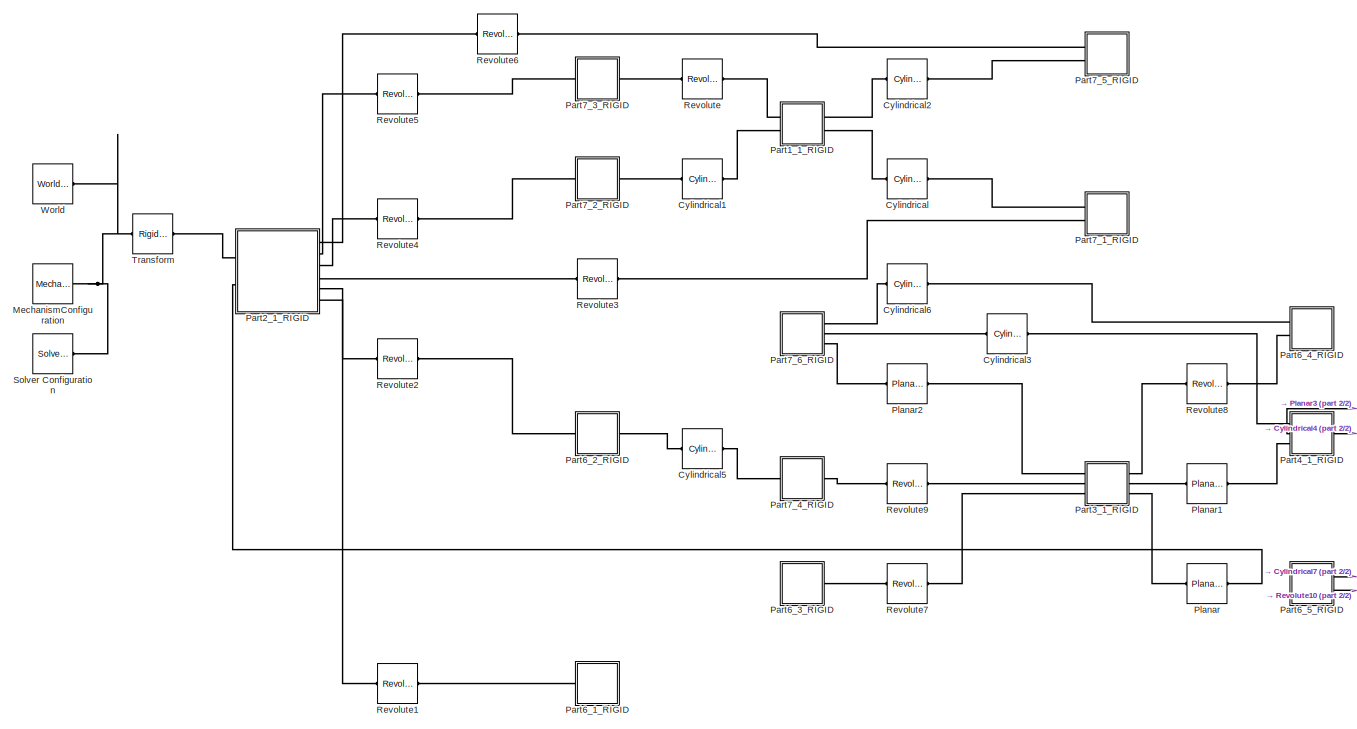
[diagram: root canvas - part 1/2, center side, full height]
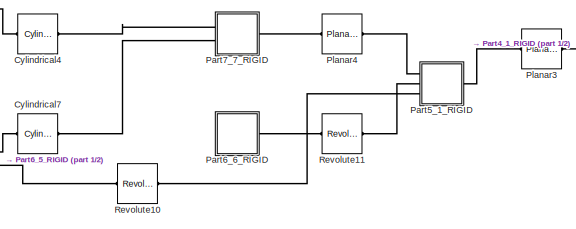
[diagram: root canvas - part 2/2, bottom right region]
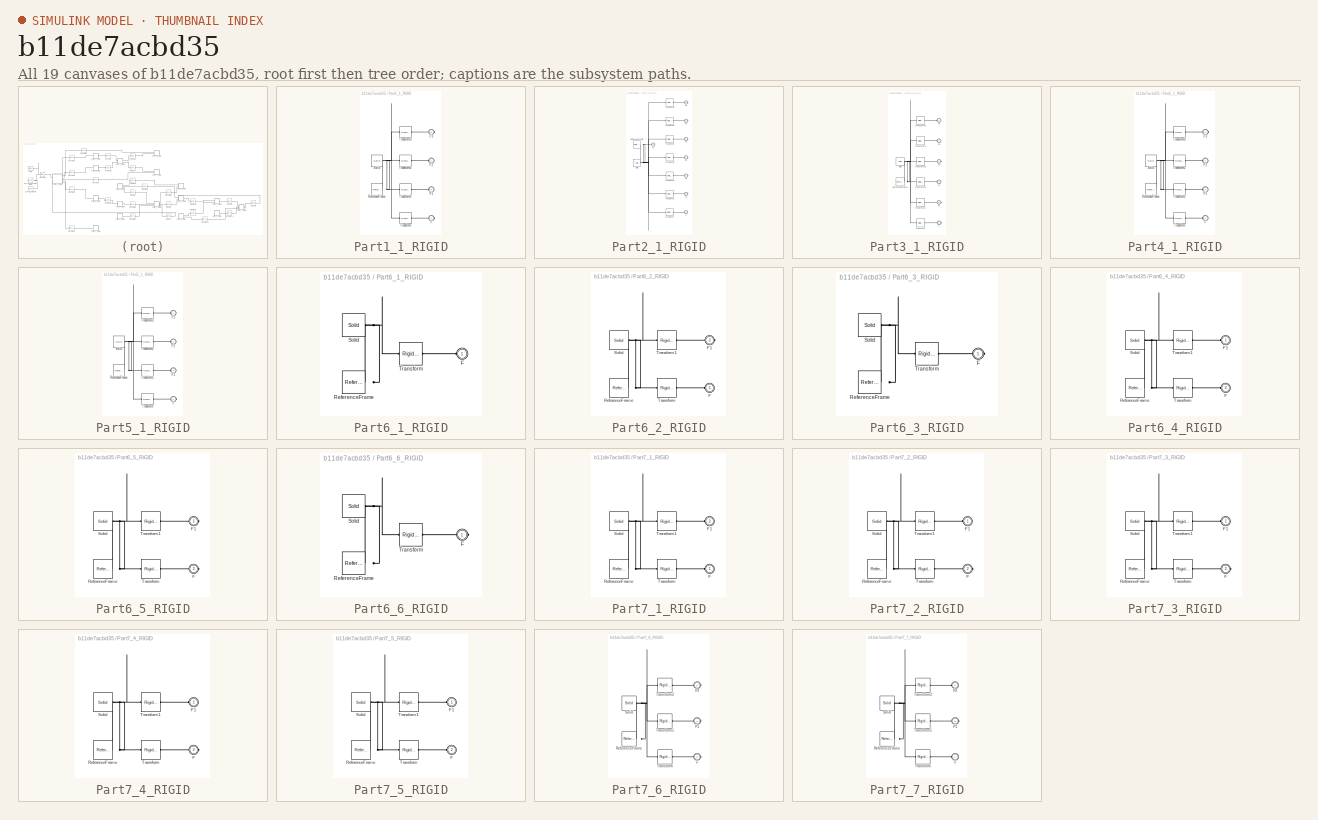
[diagram: thumbnail index - all 19 canvases of the model, root first then tree order]
MODEL slx_b11de7acbd35
KIND model
CONFIG AbsTol = auto
CONFIG EnableMultiTasking = off
CONFIG FixedStep = auto
CONFIG MaxStep = auto
CONFIG MinStep = auto
CONFIG RelTol = 1e-3
CONFIG SampleTimeConstraint = Unconstrained
CONFIG Solver = VariableStepAuto
CONFIG SolverName = VariableStepAuto
CONFIG StartTime = 0.0
CONFIG StopTime = inf
WORKSPACE source: external: MATLAB File  (data not in archive)
BLOCK [Reference] Cylindrical  REF=sm_lib/Joints/Cylindrical
Joint
  Ports = [0, 0, 0, 0, 0, 1, 1]
  SourceBlock = sm_lib/Joints/Cylindrical\nJoint
  SourceProductBaseCode = MS
  SourceType = Cylindrical\nJoint
BLOCK [Reference] Cylindrical1  REF=sm_lib/Joints/Cylindrical
Joint
  Ports = [0, 0, 0, 0, 0, 1, 1]
  SourceBlock = sm_lib/Joints/Cylindrical\nJoint
  SourceProductBaseCode = MS
  SourceType = Cylindrical\nJoint
BLOCK [Reference] Cylindrical2  REF=sm_lib/Joints/Cylindrical
Joint
  Ports = [0, 0, 0, 0, 0, 1, 1]
  SourceBlock = sm_lib/Joints/Cylindrical\nJoint
  SourceProductBaseCode = MS
  SourceType = Cylindrical\nJoint
BLOCK [Reference] Cylindrical3  REF=sm_lib/Joints/Cylindrical
Joint
  Ports = [0, 0, 0, 0, 0, 1, 1]
  SourceBlock = sm_lib/Joints/Cylindrical\nJoint
  SourceProductBaseCode = MS
  SourceType = Cylindrical\nJoint
BLOCK [Reference] Cylindrical4  REF=sm_lib/Joints/Cylindrical
Joint
  Ports = [0, 0, 0, 0, 0, 1, 1]
  SourceBlock = sm_lib/Joints/Cylindrical\nJoint
  SourceProductBaseCode = MS
  SourceType = Cylindrical\nJoint
BLOCK [Reference] Cylindrical5  REF=sm_lib/Joints/Cylindrical
Joint
  Ports = [0, 0, 0, 0, 0, 1, 1]
  SourceBlock = sm_lib/Joints/Cylindrical\nJoint
  SourceProductBaseCode = MS
  SourceType = Cylindrical\nJoint
BLOCK [Reference] Cylindrical6  REF=sm_lib/Joints/Cylindrical
Joint
  Ports = [0, 0, 0, 0, 0, 1, 1]
  SourceBlock = sm_lib/Joints/Cylindrical\nJoint
  SourceProductBaseCode = MS
  SourceType = Cylindrical\nJoint
BLOCK [Reference] Cylindrical7  REF=sm_lib/Joints/Cylindrical
Joint
  Ports = [0, 0, 0, 0, 0, 1, 1]
  SourceBlock = sm_lib/Joints/Cylindrical\nJoint
  SourceProductBaseCode = MS
  SourceType = Cylindrical\nJoint
BLOCK [Reference] MechanismConfiguration  REF=sm_lib/Utilities/Mechanism
Configuration
  Ports = [0, 0, 0, 0, 0, 0, 1]
  SourceBlock = sm_lib/Utilities/Mechanism\nConfiguration
  SourceProductBaseCode = MS
  SourceType = Mechanism\nConfiguration
BLOCK [SubSystem] Part1_1_RIGID
  Ports = [0, 0, 0, 0, 0, 2, 2]
  RequestExecContextInheritance = off
BLOCK [PMIOPort] Part1_1_RIGID/F
  Port = 4
  Side = Right
BLOCK [PMIOPort] Part1_1_RIGID/F1
  Port = 2
  Side = Left
BLOCK [PMIOPort] Part1_1_RIGID/F2
  Side = Left
BLOCK [PMIOPort] Part1_1_RIGID/F3
  Port = 3
  Side = Right
BLOCK [Reference] Part1_1_RIGID/ReferenceFrame  REF=sm_lib/Frames and
Transforms/Reference
Frame
  Ports = [0, 0, 0, 0, 0, 0, 1]
  SourceBlock = sm_lib/Frames and\nTransforms/Reference\nFrame
  SourceProductBaseCode = MS
  SourceType = Reference\nFrame
BLOCK [Reference] Part1_1_RIGID/Solid  REF=sm_lib/Body Elements/Solid
  Ports = [0, 0, 0, 0, 0, 0, 1]
  SourceBlock = sm_lib/Body Elements/Solid
  SourceProductBaseCode = MS
  SourceType = File Solid
BLOCK [Reference] Part1_1_RIGID/Transform  REF=sm_lib/Frames and
Transforms/Rigid
Transform
  Ports = [0, 0, 0, 0, 0, 1, 1]
  SourceBlock = sm_lib/Frames and\nTransforms/Rigid\nTransform
  SourceProductBaseCode = MS
  SourceType = Rigid\nTransform
BLOCK [Reference] Part1_1_RIGID/Transform1  REF=sm_lib/Frames and
Transforms/Rigid
Transform
  Ports = [0, 0, 0, 0, 0, 1, 1]
  SourceBlock = sm_lib/Frames and\nTransforms/Rigid\nTransform
  SourceProductBaseCode = MS
  SourceType = Rigid\nTransform
BLOCK [Reference] Part1_1_RIGID/Transform2  REF=sm_lib/Frames and
Transforms/Rigid
Transform
  Ports = [0, 0, 0, 0, 0, 1, 1]
  SourceBlock = sm_lib/Frames and\nTransforms/Rigid\nTransform
  SourceProductBaseCode = MS
  SourceType = Rigid\nTransform
BLOCK [Reference] Part1_1_RIGID/Transform3  REF=sm_lib/Frames and
Transforms/Rigid
Transform
  Ports = [0, 0, 0, 0, 0, 1, 1]
  SourceBlock = sm_lib/Frames and\nTransforms/Rigid\nTransform
  SourceProductBaseCode = MS
  SourceType = Rigid\nTransform
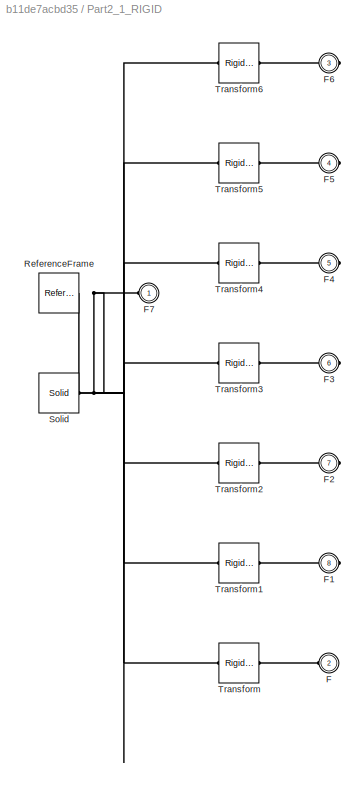
BLOCK [SubSystem] Part2_1_RIGID
  Ports = [0, 0, 0, 0, 0, 2, 6]
  RequestExecContextInheritance = off
BLOCK [PMIOPort] Part2_1_RIGID/F
  Port = 2
  Side = Left
BLOCK [PMIOPort] Part2_1_RIGID/F1
  Port = 8
  Side = Right
BLOCK [PMIOPort] Part2_1_RIGID/F2
  Port = 7
  Side = Right
BLOCK [PMIOPort] Part2_1_RIGID/F3
  Port = 6
  Side = Right
BLOCK [PMIOPort] Part2_1_RIGID/F4
  Port = 5
  Side = Right
BLOCK [PMIOPort] Part2_1_RIGID/F5
  Port = 4
  Side = Right
BLOCK [PMIOPort] Part2_1_RIGID/F6
  Port = 3
  Side = Right
BLOCK [PMIOPort] Part2_1_RIGID/F7
  Side = Left
BLOCK [Reference] Part2_1_RIGID/ReferenceFrame  REF=sm_lib/Frames and
Transforms/Reference
Frame
  Ports = [0, 0, 0, 0, 0, 0, 1]
  SourceBlock = sm_lib/Frames and\nTransforms/Reference\nFrame
  SourceProductBaseCode = MS
  SourceType = Reference\nFrame
BLOCK [Reference] Part2_1_RIGID/Solid  REF=sm_lib/Body Elements/Solid
  Ports = [0, 0, 0, 0, 0, 0, 1]
  SourceBlock = sm_lib/Body Elements/Solid
  SourceProductBaseCode = MS
  SourceType = File Solid
BLOCK [Reference] Part2_1_RIGID/Transform  REF=sm_lib/Frames and
Transforms/Rigid
Transform
  Ports = [0, 0, 0, 0, 0, 1, 1]
  SourceBlock = sm_lib/Frames and\nTransforms/Rigid\nTransform
  SourceProductBaseCode = MS
  SourceType = Rigid\nTransform
BLOCK [Reference] Part2_1_RIGID/Transform1  REF=sm_lib/Frames and
Transforms/Rigid
Transform
  Ports = [0, 0, 0, 0, 0, 1, 1]
  SourceBlock = sm_lib/Frames and\nTransforms/Rigid\nTransform
  SourceProductBaseCode = MS
  SourceType = Rigid\nTransform
BLOCK [Reference] Part2_1_RIGID/Transform2  REF=sm_lib/Frames and
Transforms/Rigid
Transform
  Ports = [0, 0, 0, 0, 0, 1, 1]
  SourceBlock = sm_lib/Frames and\nTransforms/Rigid\nTransform
  SourceProductBaseCode = MS
  SourceType = Rigid\nTransform
BLOCK [Reference] Part2_1_RIGID/Transform3  REF=sm_lib/Frames and
Transforms/Rigid
Transform
  Ports = [0, 0, 0, 0, 0, 1, 1]
  SourceBlock = sm_lib/Frames and\nTransforms/Rigid\nTransform
  SourceProductBaseCode = MS
  SourceType = Rigid\nTransform
BLOCK [Reference] Part2_1_RIGID/Transform4  REF=sm_lib/Frames and
Transforms/Rigid
Transform
  Ports = [0, 0, 0, 0, 0, 1, 1]
  SourceBlock = sm_lib/Frames and\nTransforms/Rigid\nTransform
  SourceProductBaseCode = MS
  SourceType = Rigid\nTransform
BLOCK [Reference] Part2_1_RIGID/Transform5  REF=sm_lib/Frames and
Transforms/Rigid
Transform
  Ports = [0, 0, 0, 0, 0, 1, 1]
  SourceBlock = sm_lib/Frames and\nTransforms/Rigid\nTransform
  SourceProductBaseCode = MS
  SourceType = Rigid\nTransform
BLOCK [Reference] Part2_1_RIGID/Transform6  REF=sm_lib/Frames and
Transforms/Rigid
Transform
  Ports = [0, 0, 0, 0, 0, 1, 1]
  SourceBlock = sm_lib/Frames and\nTransforms/Rigid\nTransform
  SourceProductBaseCode = MS
  SourceType = Rigid\nTransform
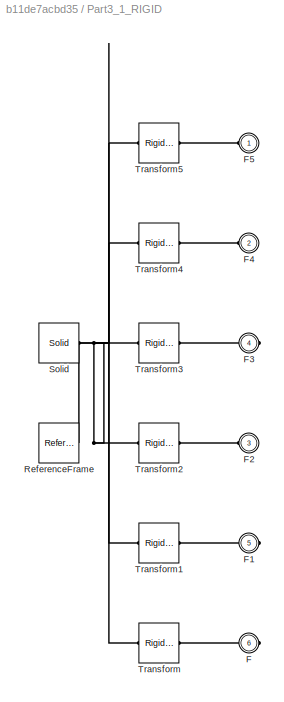
BLOCK [SubSystem] Part3_1_RIGID
  Ports = [0, 0, 0, 0, 0, 3, 3]
  RequestExecContextInheritance = off
BLOCK [PMIOPort] Part3_1_RIGID/F
  Port = 6
  Side = Right
BLOCK [PMIOPort] Part3_1_RIGID/F1
  Port = 5
  Side = Right
BLOCK [PMIOPort] Part3_1_RIGID/F2
  Port = 3
  Side = Left
BLOCK [PMIOPort] Part3_1_RIGID/F3
  Port = 4
  Side = Right
BLOCK [PMIOPort] Part3_1_RIGID/F4
  Port = 2
  Side = Left
BLOCK [PMIOPort] Part3_1_RIGID/F5
  Side = Left
BLOCK [Reference] Part3_1_RIGID/ReferenceFrame  REF=sm_lib/Frames and
Transforms/Reference
Frame
  Ports = [0, 0, 0, 0, 0, 0, 1]
  SourceBlock = sm_lib/Frames and\nTransforms/Reference\nFrame
  SourceProductBaseCode = MS
  SourceType = Reference\nFrame
BLOCK [Reference] Part3_1_RIGID/Solid  REF=sm_lib/Body Elements/Solid
  Ports = [0, 0, 0, 0, 0, 0, 1]
  SourceBlock = sm_lib/Body Elements/Solid
  SourceProductBaseCode = MS
  SourceType = File Solid
BLOCK [Reference] Part3_1_RIGID/Transform  REF=sm_lib/Frames and
Transforms/Rigid
Transform
  Ports = [0, 0, 0, 0, 0, 1, 1]
  SourceBlock = sm_lib/Frames and\nTransforms/Rigid\nTransform
  SourceProductBaseCode = MS
  SourceType = Rigid\nTransform
BLOCK [Reference] Part3_1_RIGID/Transform1  REF=sm_lib/Frames and
Transforms/Rigid
Transform
  Ports = [0, 0, 0, 0, 0, 1, 1]
  SourceBlock = sm_lib/Frames and\nTransforms/Rigid\nTransform
  SourceProductBaseCode = MS
  SourceType = Rigid\nTransform
BLOCK [Reference] Part3_1_RIGID/Transform2  REF=sm_lib/Frames and
Transforms/Rigid
Transform
  Ports = [0, 0, 0, 0, 0, 1, 1]
  SourceBlock = sm_lib/Frames and\nTransforms/Rigid\nTransform
  SourceProductBaseCode = MS
  SourceType = Rigid\nTransform
BLOCK [Reference] Part3_1_RIGID/Transform3  REF=sm_lib/Frames and
Transforms/Rigid
Transform
  Ports = [0, 0, 0, 0, 0, 1, 1]
  SourceBlock = sm_lib/Frames and\nTransforms/Rigid\nTransform
  SourceProductBaseCode = MS
  SourceType = Rigid\nTransform
BLOCK [Reference] Part3_1_RIGID/Transform4  REF=sm_lib/Frames and
Transforms/Rigid
Transform
  Ports = [0, 0, 0, 0, 0, 1, 1]
  SourceBlock = sm_lib/Frames and\nTransforms/Rigid\nTransform
  SourceProductBaseCode = MS
  SourceType = Rigid\nTransform
BLOCK [Reference] Part3_1_RIGID/Transform5  REF=sm_lib/Frames and
Transforms/Rigid
Transform
  Ports = [0, 0, 0, 0, 0, 1, 1]
  SourceBlock = sm_lib/Frames and\nTransforms/Rigid\nTransform
  SourceProductBaseCode = MS
  SourceType = Rigid\nTransform
BLOCK [SubSystem] Part4_1_RIGID
  Ports = [0, 0, 0, 0, 0, 3, 1]
  RequestExecContextInheritance = off
BLOCK [PMIOPort] Part4_1_RIGID/F
  Port = 3
  Side = Left
BLOCK [PMIOPort] Part4_1_RIGID/F1
  Port = 2
  Side = Left
BLOCK [PMIOPort] Part4_1_RIGID/F2
  Side = Left
BLOCK [PMIOPort] Part4_1_RIGID/F3
  Port = 4
  Side = Right
BLOCK [Reference] Part4_1_RIGID/ReferenceFrame  REF=sm_lib/Frames and
Transforms/Reference
Frame
  Ports = [0, 0, 0, 0, 0, 0, 1]
  SourceBlock = sm_lib/Frames and\nTransforms/Reference\nFrame
  SourceProductBaseCode = MS
  SourceType = Reference\nFrame
BLOCK [Reference] Part4_1_RIGID/Solid  REF=sm_lib/Body Elements/Solid
  Ports = [0, 0, 0, 0, 0, 0, 1]
  SourceBlock = sm_lib/Body Elements/Solid
  SourceProductBaseCode = MS
  SourceType = File Solid
BLOCK [Reference] Part4_1_RIGID/Transform  REF=sm_lib/Frames and
Transforms/Rigid
Transform
  Ports = [0, 0, 0, 0, 0, 1, 1]
  SourceBlock = sm_lib/Frames and\nTransforms/Rigid\nTransform
  SourceProductBaseCode = MS
  SourceType = Rigid\nTransform
BLOCK [Reference] Part4_1_RIGID/Transform1  REF=sm_lib/Frames and
Transforms/Rigid
Transform
  Ports = [0, 0, 0, 0, 0, 1, 1]
  SourceBlock = sm_lib/Frames and\nTransforms/Rigid\nTransform
  SourceProductBaseCode = MS
  SourceType = Rigid\nTransform
BLOCK [Reference] Part4_1_RIGID/Transform2  REF=sm_lib/Frames and
Transforms/Rigid
Transform
  Ports = [0, 0, 0, 0, 0, 1, 1]
  SourceBlock = sm_lib/Frames and\nTransforms/Rigid\nTransform
  SourceProductBaseCode = MS
  SourceType = Rigid\nTransform
BLOCK [Reference] Part4_1_RIGID/Transform3  REF=sm_lib/Frames and
Transforms/Rigid
Transform
  Ports = [0, 0, 0, 0, 0, 1, 1]
  SourceBlock = sm_lib/Frames and\nTransforms/Rigid\nTransform
  SourceProductBaseCode = MS
  SourceType = Rigid\nTransform
BLOCK [SubSystem] Part5_1_RIGID
  Ports = [0, 0, 0, 0, 0, 3, 1]
  RequestExecContextInheritance = off
BLOCK [PMIOPort] Part5_1_RIGID/F
  Port = 4
  Side = Right
BLOCK [PMIOPort] Part5_1_RIGID/F1
  Port = 3
  Side = Left
BLOCK [PMIOPort] Part5_1_RIGID/F2
  Port = 2
  Side = Left
BLOCK [PMIOPort] Part5_1_RIGID/F3
  Side = Left
BLOCK [Reference] Part5_1_RIGID/ReferenceFrame  REF=sm_lib/Frames and
Transforms/Reference
Frame
  Ports = [0, 0, 0, 0, 0, 0, 1]
  SourceBlock = sm_lib/Frames and\nTransforms/Reference\nFrame
  SourceProductBaseCode = MS
  SourceType = Reference\nFrame
BLOCK [Reference] Part5_1_RIGID/Solid  REF=sm_lib/Body Elements/Solid
  Ports = [0, 0, 0, 0, 0, 0, 1]
  SourceBlock = sm_lib/Body Elements/Solid
  SourceProductBaseCode = MS
  SourceType = File Solid
BLOCK [Reference] Part5_1_RIGID/Transform  REF=sm_lib/Frames and
Transforms/Rigid
Transform
  Ports = [0, 0, 0, 0, 0, 1, 1]
  SourceBlock = sm_lib/Frames and\nTransforms/Rigid\nTransform
  SourceProductBaseCode = MS
  SourceType = Rigid\nTransform
BLOCK [Reference] Part5_1_RIGID/Transform1  REF=sm_lib/Frames and
Transforms/Rigid
Transform
  Ports = [0, 0, 0, 0, 0, 1, 1]
  SourceBlock = sm_lib/Frames and\nTransforms/Rigid\nTransform
  SourceProductBaseCode = MS
  SourceType = Rigid\nTransform
BLOCK [Reference] Part5_1_RIGID/Transform2  REF=sm_lib/Frames and
Transforms/Rigid
Transform
  Ports = [0, 0, 0, 0, 0, 1, 1]
  SourceBlock = sm_lib/Frames and\nTransforms/Rigid\nTransform
  SourceProductBaseCode = MS
  SourceType = Rigid\nTransform
BLOCK [Reference] Part5_1_RIGID/Transform3  REF=sm_lib/Frames and
Transforms/Rigid
Transform
  Ports = [0, 0, 0, 0, 0, 1, 1]
  SourceBlock = sm_lib/Frames and\nTransforms/Rigid\nTransform
  SourceProductBaseCode = MS
  SourceType = Rigid\nTransform
BLOCK [SubSystem] Part6_1_RIGID
  Ports = [0, 0, 0, 0, 0, 1]
  RequestExecContextInheritance = off
BLOCK [PMIOPort] Part6_1_RIGID/F
  Side = Left
BLOCK [Reference] Part6_1_RIGID/ReferenceFrame  REF=sm_lib/Frames and
Transforms/Reference
Frame
  Ports = [0, 0, 0, 0, 0, 0, 1]
  SourceBlock = sm_lib/Frames and\nTransforms/Reference\nFrame
  SourceProductBaseCode = MS
  SourceType = Reference\nFrame
BLOCK [Reference] Part6_1_RIGID/Solid  REF=sm_lib/Body Elements/Solid
  Ports = [0, 0, 0, 0, 0, 0, 1]
  SourceBlock = sm_lib/Body Elements/Solid
  SourceProductBaseCode = MS
  SourceType = File Solid
BLOCK [Reference] Part6_1_RIGID/Transform  REF=sm_lib/Frames and
Transforms/Rigid
Transform
  Ports = [0, 0, 0, 0, 0, 1, 1]
  SourceBlock = sm_lib/Frames and\nTransforms/Rigid\nTransform
  SourceProductBaseCode = MS
  SourceType = Rigid\nTransform
BLOCK [SubSystem] Part6_2_RIGID
  Ports = [0, 0, 0, 0, 0, 1, 1]
  RequestExecContextInheritance = off
BLOCK [PMIOPort] Part6_2_RIGID/F
  Side = Left
BLOCK [PMIOPort] Part6_2_RIGID/F1
  Port = 2
  Side = Right
BLOCK [Reference] Part6_2_RIGID/ReferenceFrame  REF=sm_lib/Frames and
Transforms/Reference
Frame
  Ports = [0, 0, 0, 0, 0, 0, 1]
  SourceBlock = sm_lib/Frames and\nTransforms/Reference\nFrame
  SourceProductBaseCode = MS
  SourceType = Reference\nFrame
BLOCK [Reference] Part6_2_RIGID/Solid  REF=sm_lib/Body Elements/Solid
  Ports = [0, 0, 0, 0, 0, 0, 1]
  SourceBlock = sm_lib/Body Elements/Solid
  SourceProductBaseCode = MS
  SourceType = File Solid
BLOCK [Reference] Part6_2_RIGID/Transform  REF=sm_lib/Frames and
Transforms/Rigid
Transform
  Ports = [0, 0, 0, 0, 0, 1, 1]
  SourceBlock = sm_lib/Frames and\nTransforms/Rigid\nTransform
  SourceProductBaseCode = MS
  SourceType = Rigid\nTransform
BLOCK [Reference] Part6_2_RIGID/Transform1  REF=sm_lib/Frames and
Transforms/Rigid
Transform
  Ports = [0, 0, 0, 0, 0, 1, 1]
  SourceBlock = sm_lib/Frames and\nTransforms/Rigid\nTransform
  SourceProductBaseCode = MS
  SourceType = Rigid\nTransform
BLOCK [SubSystem] Part6_3_RIGID
  Ports = [0, 0, 0, 0, 0, 0, 1]
  RequestExecContextInheritance = off
BLOCK [PMIOPort] Part6_3_RIGID/F
  Side = Right
BLOCK [Reference] Part6_3_RIGID/ReferenceFrame  REF=sm_lib/Frames and
Transforms/Reference
Frame
  Ports = [0, 0, 0, 0, 0, 0, 1]
  SourceBlock = sm_lib/Frames and\nTransforms/Reference\nFrame
  SourceProductBaseCode = MS
  SourceType = Reference\nFrame
BLOCK [Reference] Part6_3_RIGID/Solid  REF=sm_lib/Body Elements/Solid
  Ports = [0, 0, 0, 0, 0, 0, 1]
  SourceBlock = sm_lib/Body Elements/Solid
  SourceProductBaseCode = MS
  SourceType = File Solid
BLOCK [Reference] Part6_3_RIGID/Transform  REF=sm_lib/Frames and
Transforms/Rigid
Transform
  Ports = [0, 0, 0, 0, 0, 1, 1]
  SourceBlock = sm_lib/Frames and\nTransforms/Rigid\nTransform
  SourceProductBaseCode = MS
  SourceType = Rigid\nTransform
BLOCK [SubSystem] Part6_4_RIGID
  Ports = [0, 0, 0, 0, 0, 2]
  RequestExecContextInheritance = off
BLOCK [PMIOPort] Part6_4_RIGID/F
  Port = 2
  Side = Left
BLOCK [PMIOPort] Part6_4_RIGID/F1
  Side = Left
BLOCK [Reference] Part6_4_RIGID/ReferenceFrame  REF=sm_lib/Frames and
Transforms/Reference
Frame
  Ports = [0, 0, 0, 0, 0, 0, 1]
  SourceBlock = sm_lib/Frames and\nTransforms/Reference\nFrame
  SourceProductBaseCode = MS
  SourceType = Reference\nFrame
BLOCK [Reference] Part6_4_RIGID/Solid  REF=sm_lib/Body Elements/Solid
  Ports = [0, 0, 0, 0, 0, 0, 1]
  SourceBlock = sm_lib/Body Elements/Solid
  SourceProductBaseCode = MS
  SourceType = File Solid
BLOCK [Reference] Part6_4_RIGID/Transform  REF=sm_lib/Frames and
Transforms/Rigid
Transform
  Ports = [0, 0, 0, 0, 0, 1, 1]
  SourceBlock = sm_lib/Frames and\nTransforms/Rigid\nTransform
  SourceProductBaseCode = MS
  SourceType = Rigid\nTransform
BLOCK [Reference] Part6_4_RIGID/Transform1  REF=sm_lib/Frames and
Transforms/Rigid
Transform
  Ports = [0, 0, 0, 0, 0, 1, 1]
  SourceBlock = sm_lib/Frames and\nTransforms/Rigid\nTransform
  SourceProductBaseCode = MS
  SourceType = Rigid\nTransform
BLOCK [SubSystem] Part6_5_RIGID
  Ports = [0, 0, 0, 0, 0, 0, 2]
  RequestExecContextInheritance = off
BLOCK [PMIOPort] Part6_5_RIGID/F
  Port = 2
  Side = Right
BLOCK [PMIOPort] Part6_5_RIGID/F1
  Side = Right
BLOCK [Reference] Part6_5_RIGID/ReferenceFrame  REF=sm_lib/Frames and
Transforms/Reference
Frame
  Ports = [0, 0, 0, 0, 0, 0, 1]
  SourceBlock = sm_lib/Frames and\nTransforms/Reference\nFrame
  SourceProductBaseCode = MS
  SourceType = Reference\nFrame
BLOCK [Reference] Part6_5_RIGID/Solid  REF=sm_lib/Body Elements/Solid
  Ports = [0, 0, 0, 0, 0, 0, 1]
  SourceBlock = sm_lib/Body Elements/Solid
  SourceProductBaseCode = MS
  SourceType = File Solid
BLOCK [Reference] Part6_5_RIGID/Transform  REF=sm_lib/Frames and
Transforms/Rigid
Transform
  Ports = [0, 0, 0, 0, 0, 1, 1]
  SourceBlock = sm_lib/Frames and\nTransforms/Rigid\nTransform
  SourceProductBaseCode = MS
  SourceType = Rigid\nTransform
BLOCK [Reference] Part6_5_RIGID/Transform1  REF=sm_lib/Frames and
Transforms/Rigid
Transform
  Ports = [0, 0, 0, 0, 0, 1, 1]
  SourceBlock = sm_lib/Frames and\nTransforms/Rigid\nTransform
  SourceProductBaseCode = MS
  SourceType = Rigid\nTransform
BLOCK [SubSystem] Part6_6_RIGID
  Ports = [0, 0, 0, 0, 0, 0, 1]
  RequestExecContextInheritance = off
BLOCK [PMIOPort] Part6_6_RIGID/F
  Side = Right
BLOCK [Reference] Part6_6_RIGID/ReferenceFrame  REF=sm_lib/Frames and
Transforms/Reference
Frame
  Ports = [0, 0, 0, 0, 0, 0, 1]
  SourceBlock = sm_lib/Frames and\nTransforms/Reference\nFrame
  SourceProductBaseCode = MS
  SourceType = Reference\nFrame
BLOCK [Reference] Part6_6_RIGID/Solid  REF=sm_lib/Body Elements/Solid
  Ports = [0, 0, 0, 0, 0, 0, 1]
  SourceBlock = sm_lib/Body Elements/Solid
  SourceProductBaseCode = MS
  SourceType = File Solid
BLOCK [Reference] Part6_6_RIGID/Transform  REF=sm_lib/Frames and
Transforms/Rigid
Transform
  Ports = [0, 0, 0, 0, 0, 1, 1]
  SourceBlock = sm_lib/Frames and\nTransforms/Rigid\nTransform
  SourceProductBaseCode = MS
  SourceType = Rigid\nTransform
BLOCK [SubSystem] Part7_1_RIGID
  Ports = [0, 0, 0, 0, 0, 2]
  RequestExecContextInheritance = off
BLOCK [PMIOPort] Part7_1_RIGID/F
  Side = Left
BLOCK [PMIOPort] Part7_1_RIGID/F1
  Port = 2
  Side = Left
BLOCK [Reference] Part7_1_RIGID/ReferenceFrame  REF=sm_lib/Frames and
Transforms/Reference
Frame
  Ports = [0, 0, 0, 0, 0, 0, 1]
  SourceBlock = sm_lib/Frames and\nTransforms/Reference\nFrame
  SourceProductBaseCode = MS
  SourceType = Reference\nFrame
BLOCK [Reference] Part7_1_RIGID/Solid  REF=sm_lib/Body Elements/Solid
  Ports = [0, 0, 0, 0, 0, 0, 1]
  SourceBlock = sm_lib/Body Elements/Solid
  SourceProductBaseCode = MS
  SourceType = File Solid
BLOCK [Reference] Part7_1_RIGID/Transform  REF=sm_lib/Frames and
Transforms/Rigid
Transform
  Ports = [0, 0, 0, 0, 0, 1, 1]
  SourceBlock = sm_lib/Frames and\nTransforms/Rigid\nTransform
  SourceProductBaseCode = MS
  SourceType = Rigid\nTransform
BLOCK [Reference] Part7_1_RIGID/Transform1  REF=sm_lib/Frames and
Transforms/Rigid
Transform
  Ports = [0, 0, 0, 0, 0, 1, 1]
  SourceBlock = sm_lib/Frames and\nTransforms/Rigid\nTransform
  SourceProductBaseCode = MS
  SourceType = Rigid\nTransform
BLOCK [SubSystem] Part7_2_RIGID
  Ports = [0, 0, 0, 0, 0, 1, 1]
  RequestExecContextInheritance = off
BLOCK [PMIOPort] Part7_2_RIGID/F
  Port = 2
  Side = Right
BLOCK [PMIOPort] Part7_2_RIGID/F1
  Side = Left
BLOCK [Reference] Part7_2_RIGID/ReferenceFrame  REF=sm_lib/Frames and
Transforms/Reference
Frame
  Ports = [0, 0, 0, 0, 0, 0, 1]
  SourceBlock = sm_lib/Frames and\nTransforms/Reference\nFrame
  SourceProductBaseCode = MS
  SourceType = Reference\nFrame
BLOCK [Reference] Part7_2_RIGID/Solid  REF=sm_lib/Body Elements/Solid
  Ports = [0, 0, 0, 0, 0, 0, 1]
  SourceBlock = sm_lib/Body Elements/Solid
  SourceProductBaseCode = MS
  SourceType = File Solid
BLOCK [Reference] Part7_2_RIGID/Transform  REF=sm_lib/Frames and
Transforms/Rigid
Transform
  Ports = [0, 0, 0, 0, 0, 1, 1]
  SourceBlock = sm_lib/Frames and\nTransforms/Rigid\nTransform
  SourceProductBaseCode = MS
  SourceType = Rigid\nTransform
BLOCK [Reference] Part7_2_RIGID/Transform1  REF=sm_lib/Frames and
Transforms/Rigid
Transform
  Ports = [0, 0, 0, 0, 0, 1, 1]
  SourceBlock = sm_lib/Frames and\nTransforms/Rigid\nTransform
  SourceProductBaseCode = MS
  SourceType = Rigid\nTransform
BLOCK [SubSystem] Part7_3_RIGID
  Ports = [0, 0, 0, 0, 0, 1, 1]
  RequestExecContextInheritance = off
BLOCK [PMIOPort] Part7_3_RIGID/F
  Port = 2
  Side = Right
BLOCK [PMIOPort] Part7_3_RIGID/F1
  Side = Left
BLOCK [Reference] Part7_3_RIGID/ReferenceFrame  REF=sm_lib/Frames and
Transforms/Reference
Frame
  Ports = [0, 0, 0, 0, 0, 0, 1]
  SourceBlock = sm_lib/Frames and\nTransforms/Reference\nFrame
  SourceProductBaseCode = MS
  SourceType = Reference\nFrame
BLOCK [Reference] Part7_3_RIGID/Solid  REF=sm_lib/Body Elements/Solid
  Ports = [0, 0, 0, 0, 0, 0, 1]
  SourceBlock = sm_lib/Body Elements/Solid
  SourceProductBaseCode = MS
  SourceType = File Solid
BLOCK [Reference] Part7_3_RIGID/Transform  REF=sm_lib/Frames and
Transforms/Rigid
Transform
  Ports = [0, 0, 0, 0, 0, 1, 1]
  SourceBlock = sm_lib/Frames and\nTransforms/Rigid\nTransform
  SourceProductBaseCode = MS
  SourceType = Rigid\nTransform
BLOCK [Reference] Part7_3_RIGID/Transform1  REF=sm_lib/Frames and
Transforms/Rigid
Transform
  Ports = [0, 0, 0, 0, 0, 1, 1]
  SourceBlock = sm_lib/Frames and\nTransforms/Rigid\nTransform
  SourceProductBaseCode = MS
  SourceType = Rigid\nTransform
BLOCK [SubSystem] Part7_4_RIGID
  Ports = [0, 0, 0, 0, 0, 1, 1]
  RequestExecContextInheritance = off
BLOCK [PMIOPort] Part7_4_RIGID/F
  Port = 2
  Side = Right
BLOCK [PMIOPort] Part7_4_RIGID/F1
  Side = Left
BLOCK [Reference] Part7_4_RIGID/ReferenceFrame  REF=sm_lib/Frames and
Transforms/Reference
Frame
  Ports = [0, 0, 0, 0, 0, 0, 1]
  SourceBlock = sm_lib/Frames and\nTransforms/Reference\nFrame
  SourceProductBaseCode = MS
  SourceType = Reference\nFrame
BLOCK [Reference] Part7_4_RIGID/Solid  REF=sm_lib/Body Elements/Solid
  Ports = [0, 0, 0, 0, 0, 0, 1]
  SourceBlock = sm_lib/Body Elements/Solid
  SourceProductBaseCode = MS
  SourceType = File Solid
BLOCK [Reference] Part7_4_RIGID/Transform  REF=sm_lib/Frames and
Transforms/Rigid
Transform
  Ports = [0, 0, 0, 0, 0, 1, 1]
  SourceBlock = sm_lib/Frames and\nTransforms/Rigid\nTransform
  SourceProductBaseCode = MS
  SourceType = Rigid\nTransform
BLOCK [Reference] Part7_4_RIGID/Transform1  REF=sm_lib/Frames and
Transforms/Rigid
Transform
  Ports = [0, 0, 0, 0, 0, 1, 1]
  SourceBlock = sm_lib/Frames and\nTransforms/Rigid\nTransform
  SourceProductBaseCode = MS
  SourceType = Rigid\nTransform
BLOCK [SubSystem] Part7_5_RIGID
  Ports = [0, 0, 0, 0, 0, 2]
  RequestExecContextInheritance = off
BLOCK [PMIOPort] Part7_5_RIGID/F
  Port = 2
  Side = Left
BLOCK [PMIOPort] Part7_5_RIGID/F1
  Side = Left
BLOCK [Reference] Part7_5_RIGID/ReferenceFrame  REF=sm_lib/Frames and
Transforms/Reference
Frame
  Ports = [0, 0, 0, 0, 0, 0, 1]
  SourceBlock = sm_lib/Frames and\nTransforms/Reference\nFrame
  SourceProductBaseCode = MS
  SourceType = Reference\nFrame
BLOCK [Reference] Part7_5_RIGID/Solid  REF=sm_lib/Body Elements/Solid
  Ports = [0, 0, 0, 0, 0, 0, 1]
  SourceBlock = sm_lib/Body Elements/Solid
  SourceProductBaseCode = MS
  SourceType = File Solid
BLOCK [Reference] Part7_5_RIGID/Transform  REF=sm_lib/Frames and
Transforms/Rigid
Transform
  Ports = [0, 0, 0, 0, 0, 1, 1]
  SourceBlock = sm_lib/Frames and\nTransforms/Rigid\nTransform
  SourceProductBaseCode = MS
  SourceType = Rigid\nTransform
BLOCK [Reference] Part7_5_RIGID/Transform1  REF=sm_lib/Frames and
Transforms/Rigid
Transform
  Ports = [0, 0, 0, 0, 0, 1, 1]
  SourceBlock = sm_lib/Frames and\nTransforms/Rigid\nTransform
  SourceProductBaseCode = MS
  SourceType = Rigid\nTransform
BLOCK [SubSystem] Part7_6_RIGID
  Ports = [0, 0, 0, 0, 0, 0, 3]
  RequestExecContextInheritance = off
BLOCK [PMIOPort] Part7_6_RIGID/F
  Port = 3
  Side = Right
BLOCK [PMIOPort] Part7_6_RIGID/F1
  Port = 2
  Side = Right
BLOCK [PMIOPort] Part7_6_RIGID/F2
  Side = Right
BLOCK [Reference] Part7_6_RIGID/ReferenceFrame  REF=sm_lib/Frames and
Transforms/Reference
Frame
  Ports = [0, 0, 0, 0, 0, 0, 1]
  SourceBlock = sm_lib/Frames and\nTransforms/Reference\nFrame
  SourceProductBaseCode = MS
  SourceType = Reference\nFrame
BLOCK [Reference] Part7_6_RIGID/Solid  REF=sm_lib/Body Elements/Solid
  Ports = [0, 0, 0, 0, 0, 0, 1]
  SourceBlock = sm_lib/Body Elements/Solid
  SourceProductBaseCode = MS
  SourceType = File Solid
BLOCK [Reference] Part7_6_RIGID/Transform  REF=sm_lib/Frames and
Transforms/Rigid
Transform
  Ports = [0, 0, 0, 0, 0, 1, 1]
  SourceBlock = sm_lib/Frames and\nTransforms/Rigid\nTransform
  SourceProductBaseCode = MS
  SourceType = Rigid\nTransform
BLOCK [Reference] Part7_6_RIGID/Transform1  REF=sm_lib/Frames and
Transforms/Rigid
Transform
  Ports = [0, 0, 0, 0, 0, 1, 1]
  SourceBlock = sm_lib/Frames and\nTransforms/Rigid\nTransform
  SourceProductBaseCode = MS
  SourceType = Rigid\nTransform
BLOCK [Reference] Part7_6_RIGID/Transform2  REF=sm_lib/Frames and
Transforms/Rigid
Transform
  Ports = [0, 0, 0, 0, 0, 1, 1]
  SourceBlock = sm_lib/Frames and\nTransforms/Rigid\nTransform
  SourceProductBaseCode = MS
  SourceType = Rigid\nTransform
BLOCK [SubSystem] Part7_7_RIGID
  Ports = [0, 0, 0, 0, 0, 2, 1]
  RequestExecContextInheritance = off
BLOCK [PMIOPort] Part7_7_RIGID/F
  Side = Left
BLOCK [PMIOPort] Part7_7_RIGID/F1
  Port = 3
  Side = Right
BLOCK [PMIOPort] Part7_7_RIGID/F2
  Port = 2
  Side = Left
BLOCK [Reference] Part7_7_RIGID/ReferenceFrame  REF=sm_lib/Frames and
Transforms/Reference
Frame
  Ports = [0, 0, 0, 0, 0, 0, 1]
  SourceBlock = sm_lib/Frames and\nTransforms/Reference\nFrame
  SourceProductBaseCode = MS
  SourceType = Reference\nFrame
BLOCK [Reference] Part7_7_RIGID/Solid  REF=sm_lib/Body Elements/Solid
  Ports = [0, 0, 0, 0, 0, 0, 1]
  SourceBlock = sm_lib/Body Elements/Solid
  SourceProductBaseCode = MS
  SourceType = File Solid
BLOCK [Reference] Part7_7_RIGID/Transform  REF=sm_lib/Frames and
Transforms/Rigid
Transform
  Ports = [0, 0, 0, 0, 0, 1, 1]
  SourceBlock = sm_lib/Frames and\nTransforms/Rigid\nTransform
  SourceProductBaseCode = MS
  SourceType = Rigid\nTransform
BLOCK [Reference] Part7_7_RIGID/Transform1  REF=sm_lib/Frames and
Transforms/Rigid
Transform
  Ports = [0, 0, 0, 0, 0, 1, 1]
  SourceBlock = sm_lib/Frames and\nTransforms/Rigid\nTransform
  SourceProductBaseCode = MS
  SourceType = Rigid\nTransform
BLOCK [Reference] Part7_7_RIGID/Transform2  REF=sm_lib/Frames and
Transforms/Rigid
Transform
  Ports = [0, 0, 0, 0, 0, 1, 1]
  SourceBlock = sm_lib/Frames and\nTransforms/Rigid\nTransform
  SourceProductBaseCode = MS
  SourceType = Rigid\nTransform
BLOCK [Reference] Planar  REF=sm_lib/Joints/Planar Joint
  Ports = [0, 0, 0, 0, 0, 1, 1]
  SourceBlock = sm_lib/Joints/Planar Joint
  SourceProductBaseCode = MS
  SourceType = Planar Joint
BLOCK [Reference] Planar1  REF=sm_lib/Joints/Planar Joint
  Ports = [0, 0, 0, 0, 0, 1, 1]
  SourceBlock = sm_lib/Joints/Planar Joint
  SourceProductBaseCode = MS
  SourceType = Planar Joint
BLOCK [Reference] Planar2  REF=sm_lib/Joints/Planar Joint
  Ports = [0, 0, 0, 0, 0, 1, 1]
  SourceBlock = sm_lib/Joints/Planar Joint
  SourceProductBaseCode = MS
  SourceType = Planar Joint
BLOCK [Reference] Planar3  REF=sm_lib/Joints/Planar Joint
  Ports = [0, 0, 0, 0, 0, 1, 1]
  SourceBlock = sm_lib/Joints/Planar Joint
  SourceProductBaseCode = MS
  SourceType = Planar Joint
BLOCK [Reference] Planar4  REF=sm_lib/Joints/Planar Joint
  Ports = [0, 0, 0, 0, 0, 1, 1]
  SourceBlock = sm_lib/Joints/Planar Joint
  SourceProductBaseCode = MS
  SourceType = Planar Joint
BLOCK [Reference] Revolute  REF=sm_lib/Joints/Revolute Joint
  Ports = [0, 0, 0, 0, 0, 1, 1]
  SourceBlock = sm_lib/Joints/Revolute Joint
  SourceProductBaseCode = MS
  SourceType = Revolute Joint
BLOCK [Reference] Revolute1  REF=sm_lib/Joints/Revolute Joint
  Ports = [0, 0, 0, 0, 0, 1, 1]
  SourceBlock = sm_lib/Joints/Revolute Joint
  SourceProductBaseCode = MS
  SourceType = Revolute Joint
BLOCK [Reference] Revolute10  REF=sm_lib/Joints/Revolute Joint
  Ports = [0, 0, 0, 0, 0, 1, 1]
  SourceBlock = sm_lib/Joints/Revolute Joint
  SourceProductBaseCode = MS
  SourceType = Revolute Joint
BLOCK [Reference] Revolute11  REF=sm_lib/Joints/Revolute Joint
  Ports = [0, 0, 0, 0, 0, 1, 1]
  SourceBlock = sm_lib/Joints/Revolute Joint
  SourceProductBaseCode = MS
  SourceType = Revolute Joint
BLOCK [Reference] Revolute2  REF=sm_lib/Joints/Revolute Joint
  Ports = [0, 0, 0, 0, 0, 1, 1]
  SourceBlock = sm_lib/Joints/Revolute Joint
  SourceProductBaseCode = MS
  SourceType = Revolute Joint
BLOCK [Reference] Revolute3  REF=sm_lib/Joints/Revolute Joint
  Ports = [0, 0, 0, 0, 0, 1, 1]
  SourceBlock = sm_lib/Joints/Revolute Joint
  SourceProductBaseCode = MS
  SourceType = Revolute Joint
BLOCK [Reference] Revolute4  REF=sm_lib/Joints/Revolute Joint
  Ports = [0, 0, 0, 0, 0, 1, 1]
  SourceBlock = sm_lib/Joints/Revolute Joint
  SourceProductBaseCode = MS
  SourceType = Revolute Joint
BLOCK [Reference] Revolute5  REF=sm_lib/Joints/Revolute Joint
  Ports = [0, 0, 0, 0, 0, 1, 1]
  SourceBlock = sm_lib/Joints/Revolute Joint
  SourceProductBaseCode = MS
  SourceType = Revolute Joint
BLOCK [Reference] Revolute6  REF=sm_lib/Joints/Revolute Joint
  Ports = [0, 0, 0, 0, 0, 1, 1]
  SourceBlock = sm_lib/Joints/Revolute Joint
  SourceProductBaseCode = MS
  SourceType = Revolute Joint
BLOCK [Reference] Revolute7  REF=sm_lib/Joints/Revolute Joint
  Ports = [0, 0, 0, 0, 0, 1, 1]
  SourceBlock = sm_lib/Joints/Revolute Joint
  SourceProductBaseCode = MS
  SourceType = Revolute Joint
BLOCK [Reference] Revolute8  REF=sm_lib/Joints/Revolute Joint
  Ports = [0, 0, 0, 0, 0, 1, 1]
  SourceBlock = sm_lib/Joints/Revolute Joint
  SourceProductBaseCode = MS
  SourceType = Revolute Joint
BLOCK [Reference] Revolute9  REF=sm_lib/Joints/Revolute Joint
  Ports = [0, 0, 0, 0, 0, 1, 1]
  SourceBlock = sm_lib/Joints/Revolute Joint
  SourceProductBaseCode = MS
  SourceType = Revolute Joint
BLOCK [Reference] Solver Configuration  REF=nesl_utility/Solver
Configuration
  Ports = [0, 0, 0, 0, 0, 0, 1]
  SourceBlock = nesl_utility/Solver\nConfiguration
  SourceProductBaseCode = SS,PW,VE
  SourceType = Solver\nConfiguration
BLOCK [Reference] Transform  REF=sm_lib/Frames and
Transforms/Rigid
Transform
  Ports = [0, 0, 0, 0, 0, 1, 1]
  SourceBlock = sm_lib/Frames and\nTransforms/Rigid\nTransform
  SourceProductBaseCode = MS
  SourceType = Rigid\nTransform
BLOCK [Reference] World  REF=sm_lib/Frames and
Transforms/World Frame
  Ports = [0, 0, 0, 0, 0, 0, 1]
  SourceBlock = sm_lib/Frames and\nTransforms/World Frame
  SourceProductBaseCode = MS
  SourceType = World Frame
PLINE Cylindrical1:LConn1 -- Part7_2_RIGID:RConn1
PLINE Cylindrical1:RConn1 -- Part1_1_RIGID:LConn2
PLINE Cylindrical2:LConn1 -- Part1_1_RIGID:RConn1
PLINE Cylindrical2:RConn1 -- Part7_5_RIGID:LConn2
PLINE Cylindrical3:LConn1 -- Part7_6_RIGID:RConn2
PLINE Cylindrical3:RConn1 -- Part4_1_RIGID:LConn1
PLINE Cylindrical4:LConn1 -- Part4_1_RIGID:RConn1
PLINE Cylindrical4:RConn1 -- Part7_7_RIGID:LConn1
PLINE Cylindrical5:LConn1 -- Part6_2_RIGID:RConn1
PLINE Cylindrical5:RConn1 -- Part7_4_RIGID:LConn1
PLINE Cylindrical6:LConn1 -- Part7_6_RIGID:RConn1
PLINE Cylindrical6:RConn1 -- Part6_4_RIGID:LConn1
PLINE Cylindrical7:LConn1 -- Part6_5_RIGID:RConn1
PLINE Cylindrical7:RConn1 -- Part7_7_RIGID:LConn2
PLINE Cylindrical:LConn1 -- Part1_1_RIGID:RConn2
PLINE Cylindrical:RConn1 -- Part7_1_RIGID:LConn1
PNET net1: MechanismConfiguration:RConn1 -- Solver Configuration:RConn1 -- Transform:LConn1 -- World:RConn1
PLINE Part1_1_RIGID/F1:RConn1 -- Part1_1_RIGID/Transform1:RConn1
PLINE Part1_1_RIGID/F2:RConn1 -- Part1_1_RIGID/Transform2:RConn1
PLINE Part1_1_RIGID/F3:RConn1 -- Part1_1_RIGID/Transform3:RConn1
PLINE Part1_1_RIGID/F:RConn1 -- Part1_1_RIGID/Transform:RConn1
PNET net2: Part1_1_RIGID/ReferenceFrame:RConn1 -- Part1_1_RIGID/Solid:RConn1 -- Part1_1_RIGID/Transform1:LConn1 -- Part1_1_RIGID/Transform2:LConn1 -- Part1_1_RIGID/Transform3:LConn1 -- Part1_1_RIGID/Transform:LConn1
PLINE Part1_1_RIGID:LConn1 -- Revolute:RConn1
PLINE Part2_1_RIGID/F1:RConn1 -- Part2_1_RIGID/Transform1:RConn1
PLINE Part2_1_RIGID/F2:RConn1 -- Part2_1_RIGID/Transform2:RConn1
PLINE Part2_1_RIGID/F3:RConn1 -- Part2_1_RIGID/Transform3:RConn1
PLINE Part2_1_RIGID/F4:RConn1 -- Part2_1_RIGID/Transform4:RConn1
PLINE Part2_1_RIGID/F5:RConn1 -- Part2_1_RIGID/Transform5:RConn1
PLINE Part2_1_RIGID/F6:RConn1 -- Part2_1_RIGID/Transform6:RConn1
PNET net3: Part2_1_RIGID/F7:RConn1 -- Part2_1_RIGID/ReferenceFrame:RConn1 -- Part2_1_RIGID/Solid:RConn1 -- Part2_1_RIGID/Transform1:LConn1 -- Part2_1_RIGID/Transform2:LConn1 -- Part2_1_RIGID/Transform3:LConn1 -- Part2_1_RIGID/Transform4:LConn1 -- Part2_1_RIGID/Transform5:LConn1 -- Part2_1_RIGID/Transform6:LConn1 -- Part2_1_RIGID/Transform:LConn1
PLINE Part2_1_RIGID/F:RConn1 -- Part2_1_RIGID/Transform:RConn1
PLINE Part2_1_RIGID:LConn1 -- Transform:RConn1
PLINE Part2_1_RIGID:LConn2 -- Planar:RConn1
PLINE Part2_1_RIGID:RConn1 -- Revolute6:LConn1
PLINE Part2_1_RIGID:RConn2 -- Revolute5:LConn1
PLINE Part2_1_RIGID:RConn3 -- Revolute4:LConn1
PLINE Part2_1_RIGID:RConn4 -- Revolute3:LConn1
PLINE Part2_1_RIGID:RConn5 -- Revolute2:LConn1
PLINE Part2_1_RIGID:RConn6 -- Revolute1:LConn1
PLINE Part3_1_RIGID/F1:RConn1 -- Part3_1_RIGID/Transform1:RConn1
PLINE Part3_1_RIGID/F2:RConn1 -- Part3_1_RIGID/Transform2:RConn1
PLINE Part3_1_RIGID/F3:RConn1 -- Part3_1_RIGID/Transform3:RConn1
PLINE Part3_1_RIGID/F4:RConn1 -- Part3_1_RIGID/Transform4:RConn1
PLINE Part3_1_RIGID/F5:RConn1 -- Part3_1_RIGID/Transform5:RConn1
PLINE Part3_1_RIGID/F:RConn1 -- Part3_1_RIGID/Transform:RConn1
PNET net4: Part3_1_RIGID/ReferenceFrame:RConn1 -- Part3_1_RIGID/Solid:RConn1 -- Part3_1_RIGID/Transform1:LConn1 -- Part3_1_RIGID/Transform2:LConn1 -- Part3_1_RIGID/Transform3:LConn1 -- Part3_1_RIGID/Transform4:LConn1 -- Part3_1_RIGID/Transform5:LConn1 -- Part3_1_RIGID/Transform:LConn1
PLINE Part3_1_RIGID:LConn1 -- Planar2:RConn1
PLINE Part3_1_RIGID:LConn2 -- Revolute9:RConn1
PLINE Part3_1_RIGID:LConn3 -- Revolute7:RConn1
PLINE Part3_1_RIGID:RConn1 -- Revolute8:LConn1
PLINE Part3_1_RIGID:RConn2 -- Planar1:LConn1
PLINE Part3_1_RIGID:RConn3 -- Planar:LConn1
PLINE Part4_1_RIGID/F1:RConn1 -- Part4_1_RIGID/Transform1:RConn1
PLINE Part4_1_RIGID/F2:RConn1 -- Part4_1_RIGID/Transform2:RConn1
PLINE Part4_1_RIGID/F3:RConn1 -- Part4_1_RIGID/Transform3:RConn1
PLINE Part4_1_RIGID/F:RConn1 -- Part4_1_RIGID/Transform:RConn1
PNET net5: Part4_1_RIGID/ReferenceFrame:RConn1 -- Part4_1_RIGID/Solid:RConn1 -- Part4_1_RIGID/Transform1:LConn1 -- Part4_1_RIGID/Transform2:LConn1 -- Part4_1_RIGID/Transform3:LConn1 -- Part4_1_RIGID/Transform:LConn1
PLINE Part4_1_RIGID:LConn2 -- Planar3:RConn1
PLINE Part4_1_RIGID:LConn3 -- Planar1:RConn1
PLINE Part5_1_RIGID/F1:RConn1 -- Part5_1_RIGID/Transform1:RConn1
PLINE Part5_1_RIGID/F2:RConn1 -- Part5_1_RIGID/Transform2:RConn1
PLINE Part5_1_RIGID/F3:RConn1 -- Part5_1_RIGID/Transform3:RConn1
PLINE Part5_1_RIGID/F:RConn1 -- Part5_1_RIGID/Transform:RConn1
PNET net6: Part5_1_RIGID/ReferenceFrame:RConn1 -- Part5_1_RIGID/Solid:RConn1 -- Part5_1_RIGID/Transform1:LConn1 -- Part5_1_RIGID/Transform2:LConn1 -- Part5_1_RIGID/Transform3:LConn1 -- Part5_1_RIGID/Transform:LConn1
PLINE Part5_1_RIGID:LConn1 -- Planar4:RConn1
PLINE Part5_1_RIGID:LConn2 -- Revolute11:RConn1
PLINE Part5_1_RIGID:LConn3 -- Revolute10:RConn1
PLINE Part5_1_RIGID:RConn1 -- Planar3:LConn1
PLINE Part6_1_RIGID/F:RConn1 -- Part6_1_RIGID/Transform:RConn1
PNET net7: Part6_1_RIGID/ReferenceFrame:RConn1 -- Part6_1_RIGID/Solid:RConn1 -- Part6_1_RIGID/Transform:LConn1
PLINE Part6_1_RIGID:LConn1 -- Revolute1:RConn1
PLINE Part6_2_RIGID/F1:RConn1 -- Part6_2_RIGID/Transform1:RConn1
PLINE Part6_2_RIGID/F:RConn1 -- Part6_2_RIGID/Transform:RConn1
PNET net8: Part6_2_RIGID/ReferenceFrame:RConn1 -- Part6_2_RIGID/Solid:RConn1 -- Part6_2_RIGID/Transform1:LConn1 -- Part6_2_RIGID/Transform:LConn1
PLINE Part6_2_RIGID:LConn1 -- Revolute2:RConn1
PLINE Part6_3_RIGID/F:RConn1 -- Part6_3_RIGID/Transform:RConn1
PNET net9: Part6_3_RIGID/ReferenceFrame:RConn1 -- Part6_3_RIGID/Solid:RConn1 -- Part6_3_RIGID/Transform:LConn1
PLINE Part6_3_RIGID:RConn1 -- Revolute7:LConn1
PLINE Part6_4_RIGID/F1:RConn1 -- Part6_4_RIGID/Transform1:RConn1
PLINE Part6_4_RIGID/F:RConn1 -- Part6_4_RIGID/Transform:RConn1
PNET net10: Part6_4_RIGID/ReferenceFrame:RConn1 -- Part6_4_RIGID/Solid:RConn1 -- Part6_4_RIGID/Transform1:LConn1 -- Part6_4_RIGID/Transform:LConn1
PLINE Part6_4_RIGID:LConn2 -- Revolute8:RConn1
PLINE Part6_5_RIGID/F1:RConn1 -- Part6_5_RIGID/Transform1:RConn1
PLINE Part6_5_RIGID/F:RConn1 -- Part6_5_RIGID/Transform:RConn1
PNET net11: Part6_5_RIGID/ReferenceFrame:RConn1 -- Part6_5_RIGID/Solid:RConn1 -- Part6_5_RIGID/Transform1:LConn1 -- Part6_5_RIGID/Transform:LConn1
PLINE Part6_5_RIGID:RConn2 -- Revolute10:LConn1
PLINE Part6_6_RIGID/F:RConn1 -- Part6_6_RIGID/Transform:RConn1
PNET net12: Part6_6_RIGID/ReferenceFrame:RConn1 -- Part6_6_RIGID/Solid:RConn1 -- Part6_6_RIGID/Transform:LConn1
PLINE Part6_6_RIGID:RConn1 -- Revolute11:LConn1
PLINE Part7_1_RIGID/F1:RConn1 -- Part7_1_RIGID/Transform1:RConn1
PLINE Part7_1_RIGID/F:RConn1 -- Part7_1_RIGID/Transform:RConn1
PNET net13: Part7_1_RIGID/ReferenceFrame:RConn1 -- Part7_1_RIGID/Solid:RConn1 -- Part7_1_RIGID/Transform1:LConn1 -- Part7_1_RIGID/Transform:LConn1
PLINE Part7_1_RIGID:LConn2 -- Revolute3:RConn1
PLINE Part7_2_RIGID/F1:RConn1 -- Part7_2_RIGID/Transform1:RConn1
PLINE Part7_2_RIGID/F:RConn1 -- Part7_2_RIGID/Transform:RConn1
PNET net14: Part7_2_RIGID/ReferenceFrame:RConn1 -- Part7_2_RIGID/Solid:RConn1 -- Part7_2_RIGID/Transform1:LConn1 -- Part7_2_RIGID/Transform:LConn1
PLINE Part7_2_RIGID:LConn1 -- Revolute4:RConn1
PLINE Part7_3_RIGID/F1:RConn1 -- Part7_3_RIGID/Transform1:RConn1
PLINE Part7_3_RIGID/F:RConn1 -- Part7_3_RIGID/Transform:RConn1
PNET net15: Part7_3_RIGID/ReferenceFrame:RConn1 -- Part7_3_RIGID/Solid:RConn1 -- Part7_3_RIGID/Transform1:LConn1 -- Part7_3_RIGID/Transform:LConn1
PLINE Part7_3_RIGID:LConn1 -- Revolute5:RConn1
PLINE Part7_3_RIGID:RConn1 -- Revolute:LConn1
PLINE Part7_4_RIGID/F1:RConn1 -- Part7_4_RIGID/Transform1:RConn1
PLINE Part7_4_RIGID/F:RConn1 -- Part7_4_RIGID/Transform:RConn1
PNET net16: Part7_4_RIGID/ReferenceFrame:RConn1 -- Part7_4_RIGID/Solid:RConn1 -- Part7_4_RIGID/Transform1:LConn1 -- Part7_4_RIGID/Transform:LConn1
PLINE Part7_4_RIGID:RConn1 -- Revolute9:LConn1
PLINE Part7_5_RIGID/F1:RConn1 -- Part7_5_RIGID/Transform1:RConn1
PLINE Part7_5_RIGID/F:RConn1 -- Part7_5_RIGID/Transform:RConn1
PNET net17: Part7_5_RIGID/ReferenceFrame:RConn1 -- Part7_5_RIGID/Solid:RConn1 -- Part7_5_RIGID/Transform1:LConn1 -- Part7_5_RIGID/Transform:LConn1
PLINE Part7_5_RIGID:LConn1 -- Revolute6:RConn1
PLINE Part7_6_RIGID/F1:RConn1 -- Part7_6_RIGID/Transform1:RConn1
PLINE Part7_6_RIGID/F2:RConn1 -- Part7_6_RIGID/Transform2:RConn1
PLINE Part7_6_RIGID/F:RConn1 -- Part7_6_RIGID/Transform:RConn1
PNET net18: Part7_6_RIGID/ReferenceFrame:RConn1 -- Part7_6_RIGID/Solid:RConn1 -- Part7_6_RIGID/Transform1:LConn1 -- Part7_6_RIGID/Transform2:LConn1 -- Part7_6_RIGID/Transform:LConn1
PLINE Part7_6_RIGID:RConn3 -- Planar2:LConn1
PLINE Part7_7_RIGID/F1:RConn1 -- Part7_7_RIGID/Transform1:RConn1
PLINE Part7_7_RIGID/F2:RConn1 -- Part7_7_RIGID/Transform2:RConn1
PLINE Part7_7_RIGID/F:RConn1 -- Part7_7_RIGID/Transform:RConn1
PNET net19: Part7_7_RIGID/ReferenceFrame:RConn1 -- Part7_7_RIGID/Solid:RConn1 -- Part7_7_RIGID/Transform1:LConn1 -- Part7_7_RIGID/Transform2:LConn1 -- Part7_7_RIGID/Transform:LConn1
PLINE Part7_7_RIGID:RConn1 -- Planar4:LConn1
note: PNET lines group multi-terminal physical nets as a canonical sorted terminal list (undirected conserving connections); 2-terminal nets keep the pairwise PLINE form
